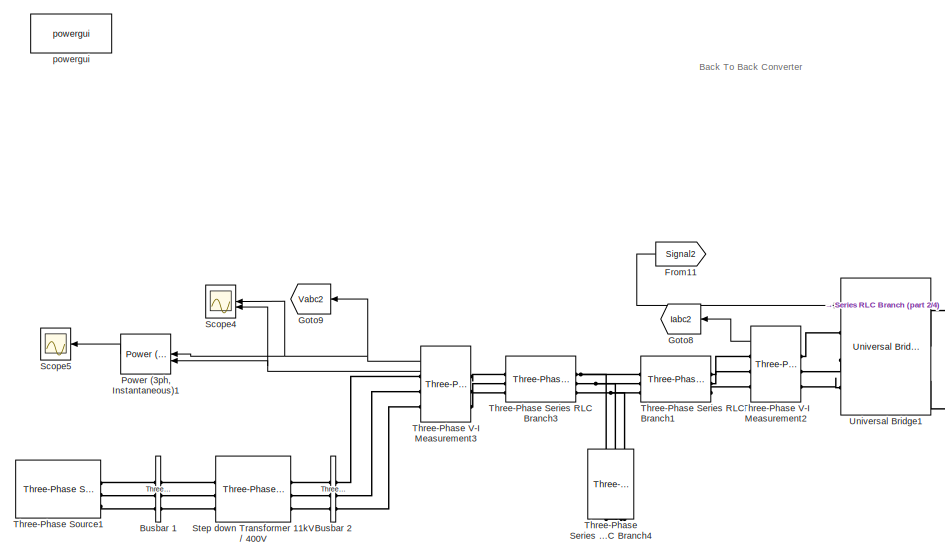
[diagram: root canvas - part 1/4, top left region]
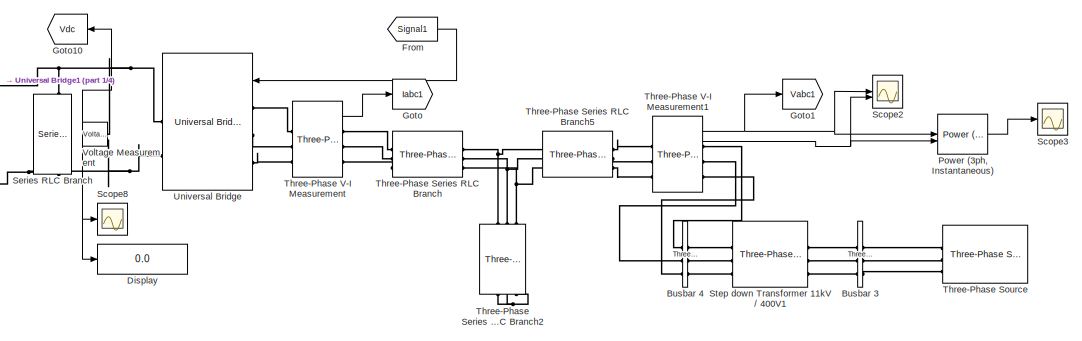
[diagram: root canvas - part 2/4, top right region]
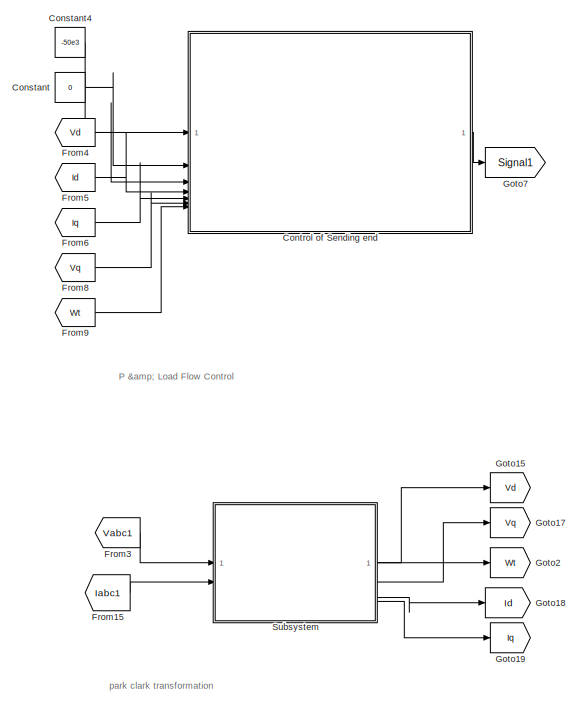
[diagram: root canvas - part 3/4, bottom right region]
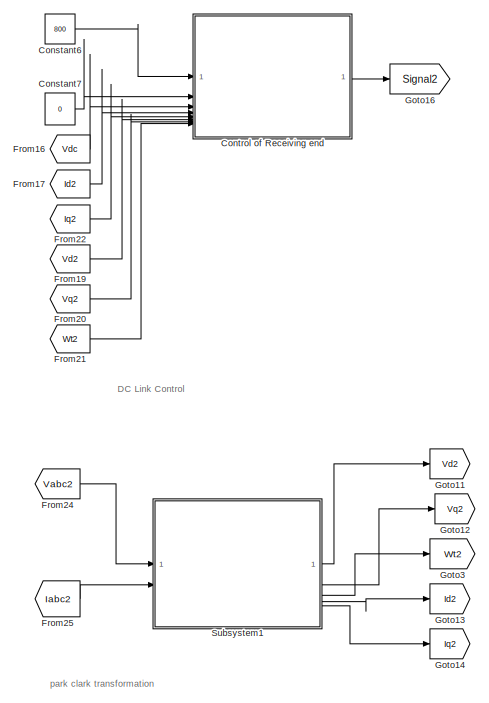
[diagram: root canvas - part 4/4, bottom left region]
MODEL slx_aa6a70c845a1
KIND model
CONFIG AbsTol = auto
CONFIG EnableMultiTasking = off
CONFIG FixedStep = auto
CONFIG MaxStep = 1e-5
CONFIG MinStep = auto
CONFIG RelTol = 1e-3
CONFIG SampleTimeConstraint = Unconstrained
CONFIG SolverName = ode23tb
CONFIG StartTime = 0.0
CONFIG StopTime = 1
BLOCK [Reference] Busbar 1  REF=spsThreePhaseVIMeasurementLib/Three-Phase
V-I Measurement
  SourceBlock = spsThreePhaseVIMeasurementLib/Three-Phase\nV-I Measurement
  SourceType = Three-Phase VI Measurement
BLOCK [Reference] Busbar 2  REF=spsThreePhaseVIMeasurementLib/Three-Phase
V-I Measurement
  SourceBlock = spsThreePhaseVIMeasurementLib/Three-Phase\nV-I Measurement
  SourceType = Three-Phase VI Measurement
BLOCK [Reference] Busbar 3  REF=spsThreePhaseVIMeasurementLib/Three-Phase
V-I Measurement
  SourceBlock = spsThreePhaseVIMeasurementLib/Three-Phase\nV-I Measurement
  SourceType = Three-Phase VI Measurement
BLOCK [Reference] Busbar 4  REF=spsThreePhaseVIMeasurementLib/Three-Phase
V-I Measurement
  SourceBlock = spsThreePhaseVIMeasurementLib/Three-Phase\nV-I Measurement
  SourceType = Three-Phase VI Measurement
BLOCK [Constant] Constant
  Value = 0
BLOCK [Constant] Constant4
  Value = -50e3
BLOCK [Constant] Constant6
  Value = 800
BLOCK [Constant] Constant7
  Value = 0
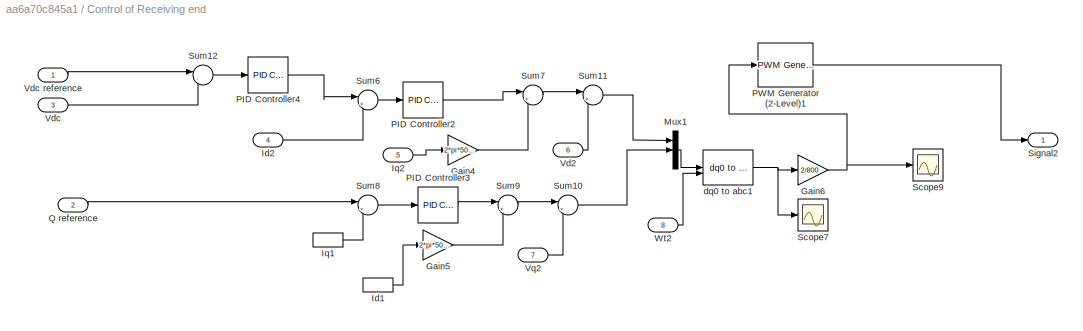
BLOCK [SubSystem] Control of Receiving end
BLOCK [Gain] Control of Receiving end/Gain4
  Gain = 2*pi*50*1e-3
BLOCK [Gain] Control of Receiving end/Gain5
  Gain = 2*pi*50*1e-3
BLOCK [Gain] Control of Receiving end/Gain6
  Gain = 2/800
BLOCK [InportShadow] Control of Receiving end/Id1
  Port = 4
BLOCK [Inport] Control of Receiving end/Id2
  Port = 4
BLOCK [InportShadow] Control of Receiving end/Iq1
  Port = 5
BLOCK [Inport] Control of Receiving end/Iq2
  Port = 5
BLOCK [Mux] Control of Receiving end/Mux1
  DisplayOption = bar
  Inputs = 3
BLOCK [Reference] Control of Receiving end/PID Controller2  REF=slpidlib/PID Controller
  LibrarySourceBlock = simulink/Continuous/PID Controller
  SourceBlock = slpidlib/PID Controller
  SourceType = PID 1dof
BLOCK [Reference] Control of Receiving end/PID Controller3  REF=slpidlib/PID Controller
  LibrarySourceBlock = simulink/Continuous/PID Controller
  SourceBlock = slpidlib/PID Controller
  SourceType = PID 1dof
BLOCK [Reference] Control of Receiving end/PID Controller4  REF=slpidlib/PID Controller
  LibrarySourceBlock = simulink/Continuous/PID Controller
  SourceBlock = slpidlib/PID Controller
  SourceType = PID 1dof
BLOCK [Reference] Control of Receiving end/PWM Generator (2-Level)1  REF=spsPWMGenerator2LevelLib/PWM Generator
(2-Level)
  LibrarySourceBlock = sps_lib/Power Electronics/Power Electronics Control/PWM Generator\n(2-Level)
  SourceBlock = spsPWMGenerator2LevelLib/PWM Generator\n(2-Level)
  SourceType = PWM Generator (2-Level)
BLOCK [Inport] Control of Receiving end/Q reference
  Port = 2
BLOCK [Scope] Control of Receiving end/Scope7
  Floating = off
  NumInputPorts = 1
  ScopeSpecificationString = Simulink.scopes.TimeScopeBlockCfg('CurrentConfiguration', extmgr.ConfigurationSet(extmgr.Configuration('Core','General UI',true),extmgr.Configuration('Core','Source UI',true),extmgr.Configuration('Sources','WiredSimulink',true,'DataLoggingVariableName','ScopeData1'),extmgr.Configuration('Visuals','Time Domain',true,'SerializedDisplays',{struct('MinYLimReal','-619.70319','MaxYLimReal','602.61463','...<+1459ch>
BLOCK [Scope] Control of Receiving end/Scope9
  Floating = off
  NumInputPorts = 1
  ScopeSpecificationString = Simulink.scopes.TimeScopeBlockCfg('CurrentConfiguration', extmgr.ConfigurationSet(extmgr.Configuration('Core','General UI',true),extmgr.Configuration('Core','Source UI',true),extmgr.Configuration('Sources','WiredSimulink',true,'DataLoggingVariableName','ScopeData4'),extmgr.Configuration('Visuals','Time Domain',true,'SerializedDisplays',{struct('MinYLimReal','-1.62641','MaxYLimReal','1.50766','YLab...<+1432ch>
BLOCK [Outport] Control of Receiving end/Signal2
BLOCK [Sum] Control of Receiving end/Sum10
  Inputs = |++
BLOCK [Sum] Control of Receiving end/Sum11
  Inputs = |++
BLOCK [Sum] Control of Receiving end/Sum12
  Inputs = |-+
BLOCK [Sum] Control of Receiving end/Sum6
  Inputs = |+-
BLOCK [Sum] Control of Receiving end/Sum7
  Inputs = |+-
BLOCK [Sum] Control of Receiving end/Sum8
  Inputs = |+-
BLOCK [Sum] Control of Receiving end/Sum9
  Inputs = |++
BLOCK [Inport] Control of Receiving end/Vd2
  Port = 6
BLOCK [Inport] Control of Receiving end/Vdc
  Port = 3
BLOCK [Inport] Control of Receiving end/Vdc reference
BLOCK [Inport] Control of Receiving end/Vq2
  Port = 7
BLOCK [Inport] Control of Receiving end/Wt2
  Port = 8
BLOCK [Reference] Control of Receiving end/dq0 to abc1  REF=spsdq0toabcLib/dq0 to abc
  LibrarySourceBlock = sps_lib/Control/dq0 to abc
  SourceBlock = spsdq0toabcLib/dq0 to abc
  SourceType = dq0 to abc Transformation
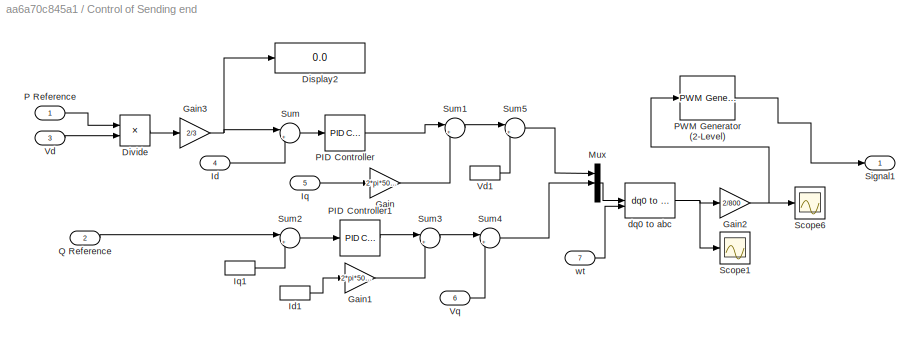
BLOCK [SubSystem] Control of Sending end
BLOCK [Display] Control of Sending end/Display2
  Decimation = 1
BLOCK [Product] Control of Sending end/Divide
  Inputs = */
BLOCK [Gain] Control of Sending end/Gain
  Gain = 2*pi*50*1e-3
BLOCK [Gain] Control of Sending end/Gain1
  Gain = 2*pi*50*1e-3
BLOCK [Gain] Control of Sending end/Gain2
  Gain = 2/800
BLOCK [Gain] Control of Sending end/Gain3
  Gain = 2/3
BLOCK [Inport] Control of Sending end/Id
  Port = 4
BLOCK [InportShadow] Control of Sending end/Id1
  Port = 4
BLOCK [Inport] Control of Sending end/Iq
  Port = 5
BLOCK [InportShadow] Control of Sending end/Iq1
  Port = 5
BLOCK [Mux] Control of Sending end/Mux
  DisplayOption = bar
  Inputs = 3
BLOCK [Inport] Control of Sending end/P Reference
BLOCK [Reference] Control of Sending end/PID Controller  REF=slpidlib/PID Controller
  LibrarySourceBlock = simulink/Continuous/PID Controller
  SourceBlock = slpidlib/PID Controller
  SourceType = PID 1dof
BLOCK [Reference] Control of Sending end/PID Controller1  REF=slpidlib/PID Controller
  LibrarySourceBlock = simulink/Continuous/PID Controller
  SourceBlock = slpidlib/PID Controller
  SourceType = PID 1dof
BLOCK [Reference] Control of Sending end/PWM Generator (2-Level)  REF=spsPWMGenerator2LevelLib/PWM Generator
(2-Level)
  LibrarySourceBlock = sps_lib/Power Electronics/Power Electronics Control/PWM Generator\n(2-Level)
  SourceBlock = spsPWMGenerator2LevelLib/PWM Generator\n(2-Level)
  SourceType = PWM Generator (2-Level)
BLOCK [Inport] Control of Sending end/Q Reference
  Port = 2
BLOCK [Scope] Control of Sending end/Scope1
  Floating = off
  NumInputPorts = 1
  ScopeSpecificationString = Simulink.scopes.TimeScopeBlockCfg('CurrentConfiguration', extmgr.ConfigurationSet(extmgr.Configuration('Core','General UI',true),extmgr.Configuration('Core','Source UI',true),extmgr.Configuration('Sources','WiredSimulink',true,'DataLoggingVariableName','ScopeData1'),extmgr.Configuration('Visuals','Time Domain',true,'SerializedDisplays',{struct('MinYLimReal','-619.70319','MaxYLimReal','602.61463','...<+1459ch>
BLOCK [Scope] Control of Sending end/Scope6
  Floating = off
  NumInputPorts = 1
  ScopeSpecificationString = Simulink.scopes.TimeScopeBlockCfg('CurrentConfiguration', extmgr.ConfigurationSet(extmgr.Configuration('Core','General UI',true),extmgr.Configuration('Core','Source UI',true),extmgr.Configuration('Sources','WiredSimulink',true,'DataLoggingVariableName','ScopeData2'),extmgr.Configuration('Visuals','Time Domain',true,'SerializedDisplays',{struct('MinYLimReal','-1.62641','MaxYLimReal','1.50766','YLab...<+1432ch>
BLOCK [Outport] Control of Sending end/Signal1
BLOCK [Sum] Control of Sending end/Sum
  Inputs = |+-
BLOCK [Sum] Control of Sending end/Sum1
  Inputs = |+-
BLOCK [Sum] Control of Sending end/Sum2
  Inputs = |+-
BLOCK [Sum] Control of Sending end/Sum3
  Inputs = |++
BLOCK [Sum] Control of Sending end/Sum4
  Inputs = |++
BLOCK [Sum] Control of Sending end/Sum5
  Inputs = |++
BLOCK [Inport] Control of Sending end/Vd
  Port = 3
BLOCK [InportShadow] Control of Sending end/Vd1
  Port = 3
BLOCK [Inport] Control of Sending end/Vq
  Port = 6
BLOCK [Reference] Control of Sending end/dq0 to abc  REF=spsdq0toabcLib/dq0 to abc
  LibrarySourceBlock = sps_lib/Control/dq0 to abc
  SourceBlock = spsdq0toabcLib/dq0 to abc
  SourceType = dq0 to abc Transformation
BLOCK [Inport] Control of Sending end/wt
  Port = 7
BLOCK [Display] Display
  Decimation = 1
BLOCK [From] From
  GotoTag = Signal1
BLOCK [From] From11
  GotoTag = Signal2
BLOCK [From] From15
  GotoTag = Iabc1
BLOCK [From] From16
  GotoTag = Vdc
BLOCK [From] From17
  GotoTag = Id2
BLOCK [From] From19
  GotoTag = Vd2
BLOCK [From] From20
  GotoTag = Vq2
BLOCK [From] From21
  GotoTag = Wt2
BLOCK [From] From22
  GotoTag = Iq2
BLOCK [From] From24
  GotoTag = Vabc2
BLOCK [From] From25
  GotoTag = Iabc2
BLOCK [From] From3
  GotoTag = Vabc1
BLOCK [From] From4
  GotoTag = Vd
BLOCK [From] From5
  GotoTag = Id
BLOCK [From] From6
  GotoTag = Iq
BLOCK [From] From8
  GotoTag = Vq
BLOCK [From] From9
  GotoTag = Wt
BLOCK [Goto] Goto
  GotoTag = Iabc1
BLOCK [Goto] Goto1
  GotoTag = Vabc1
BLOCK [Goto] Goto10
  GotoTag = Vdc
BLOCK [Goto] Goto11
  GotoTag = Vd2
BLOCK [Goto] Goto12
  GotoTag = Vq2
BLOCK [Goto] Goto13
  GotoTag = Id2
BLOCK [Goto] Goto14
  GotoTag = Iq2
BLOCK [Goto] Goto15
  GotoTag = Vd
BLOCK [Goto] Goto16
  GotoTag = Signal2
BLOCK [Goto] Goto17
  GotoTag = Vq
BLOCK [Goto] Goto18
  GotoTag = Id
BLOCK [Goto] Goto19
  GotoTag = Iq
BLOCK [Goto] Goto2
  GotoTag = Wt
BLOCK [Goto] Goto3
  GotoTag = Wt2
BLOCK [Goto] Goto7
  GotoTag = Signal1
BLOCK [Goto] Goto8
  GotoTag = Iabc2
BLOCK [Goto] Goto9
  GotoTag = Vabc2
BLOCK [Reference] Power (3ph, Instantaneous)  REF=spsPower3phInstantaneousLib/Power
(3ph, Instantaneous)
  LibrarySourceBlock = sps_lib/Sensors and Measurements/Power\n(3ph, Instantaneous)
  SourceBlock = spsPower3phInstantaneousLib/Power\n(3ph, Instantaneous)
  SourceType = Power (3ph, Instantaneous)
BLOCK [Reference] Power (3ph, Instantaneous)1  REF=spsPower3phInstantaneousLib/Power
(3ph, Instantaneous)
  LibrarySourceBlock = sps_lib/Sensors and Measurements/Power\n(3ph, Instantaneous)
  SourceBlock = spsPower3phInstantaneousLib/Power\n(3ph, Instantaneous)
  SourceType = Power (3ph, Instantaneous)
BLOCK [Scope] Scope2
  Floating = off
  NumInputPorts = 2
  ScopeSpecificationString = Simulink.scopes.TimeScopeBlockCfg('CurrentConfiguration', extmgr.ConfigurationSet(extmgr.Configuration('Core','General UI',true),extmgr.Configuration('Core','Source UI',true),extmgr.Configuration('Sources','WiredSimulink',true,'DataLoggingVariableName','ScopeData2'),extmgr.Configuration('Visuals','Time Domain',true,'SerializedDisplays',{struct('MinYLimReal','-365.00671','MaxYLimReal','336.83','YLa...<+2356ch>
BLOCK [Scope] Scope3
  Floating = off
  NumInputPorts = 1
  ScopeSpecificationString = Simulink.scopes.TimeScopeBlockCfg('CurrentConfiguration', extmgr.ConfigurationSet(extmgr.Configuration('Core','General UI',true),extmgr.Configuration('Core','Source UI',true),extmgr.Configuration('Sources','WiredSimulink',true,'DataLoggingVariableName','ScopeData3'),extmgr.Configuration('Visuals','Time Domain',true,'SerializedDisplays',{struct('MinYLimReal','-109364.38021','MaxYLimReal','120262.43...<+1529ch>
BLOCK [Scope] Scope4
  Floating = off
  NumInputPorts = 2
  ScopeSpecificationString = Simulink.scopes.TimeScopeBlockCfg('CurrentConfiguration', extmgr.ConfigurationSet(extmgr.Configuration('Core','General UI',true),extmgr.Configuration('Core','Source UI',true),extmgr.Configuration('Sources','WiredSimulink',true,'DataLoggingVariableName','ScopeData4'),extmgr.Configuration('Visuals','Time Domain',true,'SerializedDisplays',{struct('MinYLimReal','-392.94413','MaxYLimReal','347.2656','Y...<+2306ch>
BLOCK [Scope] Scope5
  Floating = off
  NumInputPorts = 1
  ScopeSpecificationString = Simulink.scopes.TimeScopeBlockCfg('CurrentConfiguration', extmgr.ConfigurationSet(extmgr.Configuration('Core','General UI',true),extmgr.Configuration('Core','Source UI',true),extmgr.Configuration('Sources','WiredSimulink',true,'DataLoggingVariableName','ScopeData5'),extmgr.Configuration('Visuals','Time Domain',true,'SerializedDisplays',{struct('MinYLimReal','-125744.51256','MaxYLimReal','197390.50...<+1505ch>
BLOCK [Scope] Scope8
  Floating = off
  NumInputPorts = 1
  ScopeSpecificationString = Simulink.scopes.TimeScopeBlockCfg('CurrentConfiguration', extmgr.ConfigurationSet(extmgr.Configuration('Core','General UI',true),extmgr.Configuration('Core','Source UI',true),extmgr.Configuration('Sources','WiredSimulink',true,'DataLoggingVariableName','ScopeData8'),extmgr.Configuration('Visuals','Time Domain',true,'SerializedDisplays',{struct('MinYLimReal','766.4111','MaxYLimReal','875.15226','YL...<+1421ch>
BLOCK [Reference] Series RLC Branch  REF=spsSeriesRLCBranchLib/Series RLC Branch
  LibrarySourceBlock = sps_lib/Passives/Series RLC Branch
  NameLocation = left
  SourceBlock = spsSeriesRLCBranchLib/Series RLC Branch
  SourceType = Series RLC Branch
BLOCK [Reference] Step down Transformer 11kV // 400V  REF=spsThreePhaseTransformerTwoWindingsLib/Three-Phase
Transformer
(Two Windings)
  SourceBlock = spsThreePhaseTransformerTwoWindingsLib/Three-Phase\nTransformer\n(Two Windings)
  SourceType = Three-Phase Transformer (Two Windings)
BLOCK [Reference] Step down Transformer 11kV // 400V1  REF=spsThreePhaseTransformerTwoWindingsLib/Three-Phase
Transformer
(Two Windings)
  SourceBlock = spsThreePhaseTransformerTwoWindingsLib/Three-Phase\nTransformer\n(Two Windings)
  SourceType = Three-Phase Transformer (Two Windings)
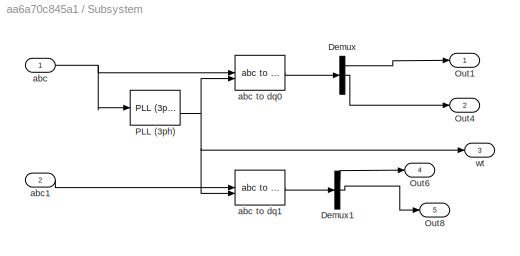
BLOCK [SubSystem] Subsystem
BLOCK [Demux] Subsystem/Demux
  Outputs = 3
BLOCK [Demux] Subsystem/Demux1
  Outputs = 3
BLOCK [Outport] Subsystem/Out1
BLOCK [Outport] Subsystem/Out4
  Port = 2
BLOCK [Outport] Subsystem/Out6
  Port = 4
BLOCK [Outport] Subsystem/Out8
  Port = 5
BLOCK [Reference] Subsystem/PLL (3ph)  REF=spsPLL3phLib/PLL
(3ph)
  LibrarySourceBlock = sps_lib/Control/PLL\n(3ph)
  SourceBlock = spsPLL3phLib/PLL\n(3ph)
  SourceType = PLL (3ph)
BLOCK [Inport] Subsystem/abc
BLOCK [Reference] Subsystem/abc to dq0  REF=spsabctodq0Lib/abc to dq0
  LibrarySourceBlock = sps_lib/Control/abc to dq0
  SourceBlock = spsabctodq0Lib/abc to dq0
  SourceType = abc to dq0 Transformation
BLOCK [Reference] Subsystem/abc to dq1  REF=spsabctodq0Lib/abc to dq0
  LibrarySourceBlock = sps_lib/Control/abc to dq0
  SourceBlock = spsabctodq0Lib/abc to dq0
  SourceType = abc to dq0 Transformation
BLOCK [Inport] Subsystem/abc1
  Port = 2
BLOCK [Outport] Subsystem/wt
  Port = 3
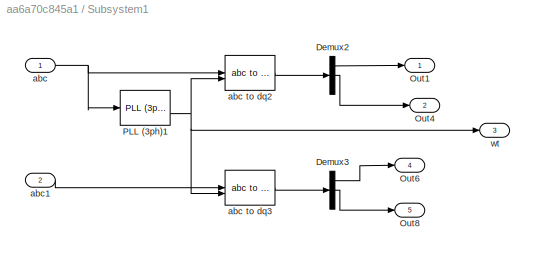
BLOCK [SubSystem] Subsystem1
BLOCK [Demux] Subsystem1/Demux2
  Outputs = 3
BLOCK [Demux] Subsystem1/Demux3
  Outputs = 3
BLOCK [Outport] Subsystem1/Out1
BLOCK [Outport] Subsystem1/Out4
  Port = 2
BLOCK [Outport] Subsystem1/Out6
  Port = 4
BLOCK [Outport] Subsystem1/Out8
  Port = 5
BLOCK [Reference] Subsystem1/PLL (3ph)1  REF=spsPLL3phLib/PLL
(3ph)
  LibrarySourceBlock = sps_lib/Control/PLL\n(3ph)
  SourceBlock = spsPLL3phLib/PLL\n(3ph)
  SourceType = PLL (3ph)
BLOCK [Inport] Subsystem1/abc
BLOCK [Reference] Subsystem1/abc to dq2  REF=spsabctodq0Lib/abc to dq0
  LibrarySourceBlock = sps_lib/Control/abc to dq0
  SourceBlock = spsabctodq0Lib/abc to dq0
  SourceType = abc to dq0 Transformation
BLOCK [Reference] Subsystem1/abc to dq3  REF=spsabctodq0Lib/abc to dq0
  LibrarySourceBlock = sps_lib/Control/abc to dq0
  SourceBlock = spsabctodq0Lib/abc to dq0
  SourceType = abc to dq0 Transformation
BLOCK [Inport] Subsystem1/abc1
  Port = 2
BLOCK [Outport] Subsystem1/wt
  Port = 3
BLOCK [Reference] Three-Phase Series RLC Branch  REF=spsThreePhaseSeriesRLCBranchLib/Three-Phase
Series RLC Branch
  AttributesFormatString = \n
  LibrarySourceBlock = sps_lib/Passives/Three-Phase\nSeries RLC Branch
  SourceBlock = spsThreePhaseSeriesRLCBranchLib/Three-Phase\nSeries RLC Branch
  SourceType = Three-Phase Series RLC Branch
BLOCK [Reference] Three-Phase Series RLC Branch1  REF=spsThreePhaseSeriesRLCBranchLib/Three-Phase
Series RLC Branch
  AttributesFormatString = \n
  LibrarySourceBlock = sps_lib/Passives/Three-Phase\nSeries RLC Branch
  SourceBlock = spsThreePhaseSeriesRLCBranchLib/Three-Phase\nSeries RLC Branch
  SourceType = Three-Phase Series RLC Branch
BLOCK [Reference] Three-Phase Series RLC Branch2  REF=spsThreePhaseSeriesRLCBranchLib/Three-Phase
Series RLC Branch
  AttributesFormatString = \n
  LibrarySourceBlock = sps_lib/Passives/Three-Phase\nSeries RLC Branch
  NameLocation = left
  SourceBlock = spsThreePhaseSeriesRLCBranchLib/Three-Phase\nSeries RLC Branch
  SourceType = Three-Phase Series RLC Branch
BLOCK [Reference] Three-Phase Series RLC Branch3  REF=spsThreePhaseSeriesRLCBranchLib/Three-Phase
Series RLC Branch
  AttributesFormatString = \n
  LibrarySourceBlock = sps_lib/Passives/Three-Phase\nSeries RLC Branch
  SourceBlock = spsThreePhaseSeriesRLCBranchLib/Three-Phase\nSeries RLC Branch
  SourceType = Three-Phase Series RLC Branch
BLOCK [Reference] Three-Phase Series RLC Branch4  REF=spsThreePhaseSeriesRLCBranchLib/Three-Phase
Series RLC Branch
  AttributesFormatString = \n
  LibrarySourceBlock = sps_lib/Passives/Three-Phase\nSeries RLC Branch
  NameLocation = left
  SourceBlock = spsThreePhaseSeriesRLCBranchLib/Three-Phase\nSeries RLC Branch
  SourceType = Three-Phase Series RLC Branch
BLOCK [Reference] Three-Phase Series RLC Branch5  REF=spsThreePhaseSeriesRLCBranchLib/Three-Phase
Series RLC Branch
  AttributesFormatString = \n
  LibrarySourceBlock = sps_lib/Passives/Three-Phase\nSeries RLC Branch
  SourceBlock = spsThreePhaseSeriesRLCBranchLib/Three-Phase\nSeries RLC Branch
  SourceType = Three-Phase Series RLC Branch
BLOCK [Reference] Three-Phase Source  REF=spsThreePhaseSourceLib/Three-Phase Source
  LibrarySourceBlock = sps_lib/Sources/Three-Phase Source
  SourceBlock = spsThreePhaseSourceLib/Three-Phase Source
  SourceType = Three-Phase Source
BLOCK [Reference] Three-Phase Source1  REF=spsThreePhaseSourceLib/Three-Phase Source
  LibrarySourceBlock = sps_lib/Sources/Three-Phase Source
  SourceBlock = spsThreePhaseSourceLib/Three-Phase Source
  SourceType = Three-Phase Source
BLOCK [Reference] Three-Phase V-I Measurement  REF=spsThreePhaseVIMeasurementLib/Three-Phase
V-I Measurement
  LibrarySourceBlock = sps_lib/Sensors and Measurements/Three-Phase\nV-I Measurement
  SourceBlock = spsThreePhaseVIMeasurementLib/Three-Phase\nV-I Measurement
  SourceType = Three-Phase VI Measurement
BLOCK [Reference] Three-Phase V-I Measurement1  REF=spsThreePhaseVIMeasurementLib/Three-Phase
V-I Measurement
  LibrarySourceBlock = sps_lib/Sensors and Measurements/Three-Phase\nV-I Measurement
  SourceBlock = spsThreePhaseVIMeasurementLib/Three-Phase\nV-I Measurement
  SourceType = Three-Phase VI Measurement
BLOCK [Reference] Three-Phase V-I Measurement2  REF=spsThreePhaseVIMeasurementLib/Three-Phase
V-I Measurement
  LibrarySourceBlock = sps_lib/Sensors and Measurements/Three-Phase\nV-I Measurement
  SourceBlock = spsThreePhaseVIMeasurementLib/Three-Phase\nV-I Measurement
  SourceType = Three-Phase VI Measurement
BLOCK [Reference] Three-Phase V-I Measurement3  REF=spsThreePhaseVIMeasurementLib/Three-Phase
V-I Measurement
  LibrarySourceBlock = sps_lib/Sensors and Measurements/Three-Phase\nV-I Measurement
  SourceBlock = spsThreePhaseVIMeasurementLib/Three-Phase\nV-I Measurement
  SourceType = Three-Phase VI Measurement
BLOCK [Reference] Universal Bridge  REF=spsUniversalBridgeLib/Universal Bridge
  LibrarySourceBlock = sps_lib/Power Electronics/Universal Bridge
  SourceBlock = spsUniversalBridgeLib/Universal Bridge
  SourceType = Universal Bridge
BLOCK [Reference] Universal Bridge1  REF=spsUniversalBridgeLib/Universal Bridge
  LibrarySourceBlock = sps_lib/Power Electronics/Universal Bridge
  SourceBlock = spsUniversalBridgeLib/Universal Bridge
  SourceType = Universal Bridge
BLOCK [Reference] Voltage Measurement  REF=spsVoltageMeasurementLib/Voltage Measurement
  LibrarySourceBlock = sps_lib/Sensors and Measurements/Voltage Measurement
  SourceBlock = spsVoltageMeasurementLib/Voltage Measurement
  SourceType = Voltage Measurement
  UserDataPersistent = on
BLOCK [Reference] powergui  REF=sps_lib/powergui
  Priority = 1
  SourceBlock = sps_lib/powergui
  SourceType = PSB option menu block
ANNOTATION (root): DC Link Control
ANNOTATION (root): P & Load Flow Control
ANNOTATION (root): park clark transformation
ANNOTATION (root): Back To Back Converter
LINE Constant4:1 -> Control of Sending end:1
LINE Constant6:1 -> Control of Receiving end:1
LINE Constant7:1 -> Control of Receiving end:2
LINE Constant:1 -> Control of Sending end:2
LINE Control of Receiving end/Gain4:1 -> Control of Receiving end/Sum7:2
LINE Control of Receiving end/Gain5:1 -> Control of Receiving end/Sum9:2
NET Control of Receiving end/Gain6:1 -> Control of Receiving end/PWM Generator (2-Level)1:1, Control of Receiving end/Scope9:1
LINE Control of Receiving end/Id1:1 -> Control of Receiving end/Gain5:1
LINE Control of Receiving end/Id2:1 -> Control of Receiving end/Sum6:2
LINE Control of Receiving end/Iq1:1 -> Control of Receiving end/Sum8:2
LINE Control of Receiving end/Iq2:1 -> Control of Receiving end/Gain4:1
LINE Control of Receiving end/Mux1:1 -> Control of Receiving end/dq0 to abc1:1
LINE Control of Receiving end/PID Controller2:1 -> Control of Receiving end/Sum7:1
LINE Control of Receiving end/PID Controller3:1 -> Control of Receiving end/Sum9:1
LINE Control of Receiving end/PID Controller4:1 -> Control of Receiving end/Sum6:1
LINE Control of Receiving end/PWM Generator (2-Level)1:1 -> Control of Receiving end/Signal2:1
LINE Control of Receiving end/Q reference:1 -> Control of Receiving end/Sum8:1
LINE Control of Receiving end/Sum10:1 -> Control of Receiving end/Mux1:2
LINE Control of Receiving end/Sum11:1 -> Control of Receiving end/Mux1:1
LINE Control of Receiving end/Sum12:1 -> Control of Receiving end/PID Controller4:1
LINE Control of Receiving end/Sum6:1 -> Control of Receiving end/PID Controller2:1
LINE Control of Receiving end/Sum7:1 -> Control of Receiving end/Sum11:1
LINE Control of Receiving end/Sum8:1 -> Control of Receiving end/PID Controller3:1
LINE Control of Receiving end/Sum9:1 -> Control of Receiving end/Sum10:1
LINE Control of Receiving end/Vd2:1 -> Control of Receiving end/Sum11:2
LINE Control of Receiving end/Vdc reference:1 -> Control of Receiving end/Sum12:1
LINE Control of Receiving end/Vdc:1 -> Control of Receiving end/Sum12:2
LINE Control of Receiving end/Vq2:1 -> Control of Receiving end/Sum10:2
LINE Control of Receiving end/Wt2:1 -> Control of Receiving end/dq0 to abc1:2
NET Control of Receiving end/dq0 to abc1:1 -> Control of Receiving end/Gain6:1, Control of Receiving end/Scope7:1
LINE Control of Receiving end:1 -> Goto16:1
LINE Control of Sending end/Divide:1 -> Control of Sending end/Gain3:1
LINE Control of Sending end/Gain1:1 -> Control of Sending end/Sum3:2
NET Control of Sending end/Gain2:1 -> Control of Sending end/PWM Generator (2-Level):1, Control of Sending end/Scope6:1
NET Control of Sending end/Gain3:1 -> Control of Sending end/Display2:1, Control of Sending end/Sum:1
LINE Control of Sending end/Gain:1 -> Control of Sending end/Sum1:2
LINE Control of Sending end/Id1:1 -> Control of Sending end/Gain1:1
LINE Control of Sending end/Id:1 -> Control of Sending end/Sum:2
LINE Control of Sending end/Iq1:1 -> Control of Sending end/Sum2:2
LINE Control of Sending end/Iq:1 -> Control of Sending end/Gain:1
LINE Control of Sending end/Mux:1 -> Control of Sending end/dq0 to abc:1
LINE Control of Sending end/P Reference:1 -> Control of Sending end/Divide:1
LINE Control of Sending end/PID Controller1:1 -> Control of Sending end/Sum3:1
LINE Control of Sending end/PID Controller:1 -> Control of Sending end/Sum1:1
LINE Control of Sending end/PWM Generator (2-Level):1 -> Control of Sending end/Signal1:1
LINE Control of Sending end/Q Reference:1 -> Control of Sending end/Sum2:1
LINE Control of Sending end/Sum1:1 -> Control of Sending end/Sum5:1
LINE Control of Sending end/Sum2:1 -> Control of Sending end/PID Controller1:1
LINE Control of Sending end/Sum3:1 -> Control of Sending end/Sum4:1
LINE Control of Sending end/Sum4:1 -> Control of Sending end/Mux:2
LINE Control of Sending end/Sum5:1 -> Control of Sending end/Mux:1
LINE Control of Sending end/Sum:1 -> Control of Sending end/PID Controller:1
LINE Control of Sending end/Vd1:1 -> Control of Sending end/Sum5:2
LINE Control of Sending end/Vd:1 -> Control of Sending end/Divide:2
LINE Control of Sending end/Vq:1 -> Control of Sending end/Sum4:2
NET Control of Sending end/dq0 to abc:1 -> Control of Sending end/Gain2:1, Control of Sending end/Scope1:1
LINE Control of Sending end/wt:1 -> Control of Sending end/dq0 to abc:2
LINE Control of Sending end:1 -> Goto7:1
LINE From11:1 -> Universal Bridge1:1
LINE From15:1 -> Subsystem:2
LINE From16:1 -> Control of Receiving end:3
LINE From17:1 -> Control of Receiving end:4
LINE From19:1 -> Control of Receiving end:6
LINE From20:1 -> Control of Receiving end:7
LINE From21:1 -> Control of Receiving end:8
LINE From22:1 -> Control of Receiving end:5
LINE From24:1 -> Subsystem1:1
LINE From25:1 -> Subsystem1:2
LINE From3:1 -> Subsystem:1
LINE From4:1 -> Control of Sending end:3
LINE From5:1 -> Control of Sending end:4
LINE From6:1 -> Control of Sending end:5
LINE From8:1 -> Control of Sending end:6
LINE From9:1 -> Control of Sending end:7
LINE From:1 -> Universal Bridge:1
LINE Power (3ph, Instantaneous)1:1 -> Scope5:1
LINE Power (3ph, Instantaneous):1 -> Scope3:1
LINE Subsystem/Demux1:1 -> Subsystem/Out6:1
LINE Subsystem/Demux1:2 -> Subsystem/Out8:1
LINE Subsystem/Demux:1 -> Subsystem/Out1:1
LINE Subsystem/Demux:2 -> Subsystem/Out4:1
NET Subsystem/PLL (3ph):2 -> Subsystem/abc to dq0:2, Subsystem/abc to dq1:2, Subsystem/wt:1
LINE Subsystem/abc to dq0:1 -> Subsystem/Demux:1
LINE Subsystem/abc to dq1:1 -> Subsystem/Demux1:1
LINE Subsystem/abc1:1 -> Subsystem/abc to dq1:1
NET Subsystem/abc:1 -> Subsystem/PLL (3ph):1, Subsystem/abc to dq0:1
LINE Subsystem1/Demux2:1 -> Subsystem1/Out1:1
LINE Subsystem1/Demux2:2 -> Subsystem1/Out4:1
LINE Subsystem1/Demux3:1 -> Subsystem1/Out6:1
LINE Subsystem1/Demux3:2 -> Subsystem1/Out8:1
NET Subsystem1/PLL (3ph)1:2 -> Subsystem1/abc to dq2:2, Subsystem1/abc to dq3:2, Subsystem1/wt:1
LINE Subsystem1/abc to dq2:1 -> Subsystem1/Demux2:1
LINE Subsystem1/abc to dq3:1 -> Subsystem1/Demux3:1
LINE Subsystem1/abc1:1 -> Subsystem1/abc to dq3:1
NET Subsystem1/abc:1 -> Subsystem1/PLL (3ph)1:1, Subsystem1/abc to dq2:1
LINE Subsystem1:1 -> Goto11:1
LINE Subsystem1:2 -> Goto12:1
LINE Subsystem1:3 -> Goto3:1
LINE Subsystem1:4 -> Goto13:1
LINE Subsystem1:5 -> Goto14:1
LINE Subsystem:1 -> Goto15:1
LINE Subsystem:2 -> Goto17:1
LINE Subsystem:3 -> Goto2:1
LINE Subsystem:4 -> Goto18:1
LINE Subsystem:5 -> Goto19:1
NET Three-Phase V-I Measurement1:1 -> Goto1:1, Power (3ph, Instantaneous):1, Scope2:1
NET Three-Phase V-I Measurement1:2 -> Power (3ph, Instantaneous):2, Scope2:2
LINE Three-Phase V-I Measurement2:1 -> Goto8:1
NET Three-Phase V-I Measurement3:1 -> Goto9:1, Power (3ph, Instantaneous)1:1, Scope4:1
NET Three-Phase V-I Measurement3:2 -> Power (3ph, Instantaneous)1:2, Scope4:2
LINE Three-Phase V-I Measurement:1 -> Goto:1
NET Voltage Measurement:1 -> Display:1, Goto10:1, Scope8:1
PLINE Busbar 1:LConn1 -- Step down Transformer 11kV // 400V:LConn1
PLINE Busbar 1:LConn2 -- Step down Transformer 11kV // 400V:LConn2
PLINE Busbar 1:LConn3 -- Step down Transformer 11kV // 400V:LConn3
PLINE Busbar 1:RConn1 -- Three-Phase Source1:RConn1
PLINE Busbar 1:RConn2 -- Three-Phase Source1:RConn2
PLINE Busbar 1:RConn3 -- Three-Phase Source1:RConn3
PLINE Busbar 2:LConn1 -- Three-Phase V-I Measurement3:RConn1
PLINE Busbar 2:LConn2 -- Three-Phase V-I Measurement3:RConn2
PLINE Busbar 2:LConn3 -- Three-Phase V-I Measurement3:RConn3
PLINE Busbar 2:RConn1 -- Step down Transformer 11kV // 400V:RConn1
PLINE Busbar 2:RConn2 -- Step down Transformer 11kV // 400V:RConn2
PLINE Busbar 2:RConn3 -- Step down Transformer 11kV // 400V:RConn3
PLINE Busbar 3:LConn1 -- Step down Transformer 11kV // 400V1:LConn1
PLINE Busbar 3:LConn2 -- Step down Transformer 11kV // 400V1:LConn2
PLINE Busbar 3:LConn3 -- Step down Transformer 11kV // 400V1:LConn3
PLINE Busbar 3:RConn1 -- Three-Phase Source:RConn1
PLINE Busbar 3:RConn2 -- Three-Phase Source:RConn2
PLINE Busbar 3:RConn3 -- Three-Phase Source:RConn3
PLINE Busbar 4:LConn1 -- Three-Phase V-I Measurement1:RConn1
PLINE Busbar 4:LConn2 -- Three-Phase V-I Measurement1:RConn2
PLINE Busbar 4:LConn3 -- Three-Phase V-I Measurement1:RConn3
PLINE Busbar 4:RConn1 -- Step down Transformer 11kV // 400V1:RConn1
PLINE Busbar 4:RConn2 -- Step down Transformer 11kV // 400V1:RConn2
PLINE Busbar 4:RConn3 -- Step down Transformer 11kV // 400V1:RConn3
PNET net1: Series RLC Branch:LConn1 -- Universal Bridge1:RConn1 -- Universal Bridge:RConn1 -- Voltage Measurement:LConn1
PNET net2: Series RLC Branch:RConn1 -- Universal Bridge1:RConn2 -- Universal Bridge:RConn2 -- Voltage Measurement:LConn2
PLINE Three-Phase Series RLC Branch1:LConn1 -- Three-Phase V-I Measurement2:RConn1
PLINE Three-Phase Series RLC Branch1:LConn2 -- Three-Phase V-I Measurement2:RConn2
PLINE Three-Phase Series RLC Branch1:LConn3 -- Three-Phase V-I Measurement2:RConn3
PNET net3: Three-Phase Series RLC Branch1:RConn1 -- Three-Phase Series RLC Branch3:LConn1 -- Three-Phase Series RLC Branch4:LConn1
PNET net4: Three-Phase Series RLC Branch1:RConn2 -- Three-Phase Series RLC Branch3:LConn2 -- Three-Phase Series RLC Branch4:LConn2
PNET net5: Three-Phase Series RLC Branch1:RConn3 -- Three-Phase Series RLC Branch3:LConn3 -- Three-Phase Series RLC Branch4:LConn3
PNET net6: Three-Phase Series RLC Branch2:LConn1 -- Three-Phase Series RLC Branch5:LConn1 -- Three-Phase Series RLC Branch:RConn1
PNET net7: Three-Phase Series RLC Branch2:LConn2 -- Three-Phase Series RLC Branch5:LConn2 -- Three-Phase Series RLC Branch:RConn2
PNET net8: Three-Phase Series RLC Branch2:LConn3 -- Three-Phase Series RLC Branch5:LConn3 -- Three-Phase Series RLC Branch:RConn3
PNET net9: Three-Phase Series RLC Branch2:RConn1 -- Three-Phase Series RLC Branch2:RConn2 -- Three-Phase Series RLC Branch2:RConn3
PLINE Three-Phase Series RLC Branch3:RConn1 -- Three-Phase V-I Measurement3:LConn1
PLINE Three-Phase Series RLC Branch3:RConn2 -- Three-Phase V-I Measurement3:LConn2
PLINE Three-Phase Series RLC Branch3:RConn3 -- Three-Phase V-I Measurement3:LConn3
PNET net10: Three-Phase Series RLC Branch4:RConn1 -- Three-Phase Series RLC Branch4:RConn2 -- Three-Phase Series RLC Branch4:RConn3
PLINE Three-Phase Series RLC Branch5:RConn1 -- Three-Phase V-I Measurement1:LConn1
PLINE Three-Phase Series RLC Branch5:RConn2 -- Three-Phase V-I Measurement1:LConn2
PLINE Three-Phase Series RLC Branch5:RConn3 -- Three-Phase V-I Measurement1:LConn3
PLINE Three-Phase Series RLC Branch:LConn1 -- Three-Phase V-I Measurement:RConn1
PLINE Three-Phase Series RLC Branch:LConn2 -- Three-Phase V-I Measurement:RConn2
PLINE Three-Phase Series RLC Branch:LConn3 -- Three-Phase V-I Measurement:RConn3
PLINE Three-Phase V-I Measurement2:LConn1 -- Universal Bridge1:LConn1
PLINE Three-Phase V-I Measurement2:LConn2 -- Universal Bridge1:LConn2
PLINE Three-Phase V-I Measurement2:LConn3 -- Universal Bridge1:LConn3
PLINE Three-Phase V-I Measurement:LConn1 -- Universal Bridge:LConn1
PLINE Three-Phase V-I Measurement:LConn2 -- Universal Bridge:LConn2
PLINE Three-Phase V-I Measurement:LConn3 -- Universal Bridge:LConn3
note: NET lines group one-source signal fan-out (src -> all destinations, sorted); 1:1 wires keep LINE; PNET lines group multi-terminal physical nets as a canonical sorted terminal list (undirected conserving connections); 2-terminal nets keep the pairwise PLINE form
